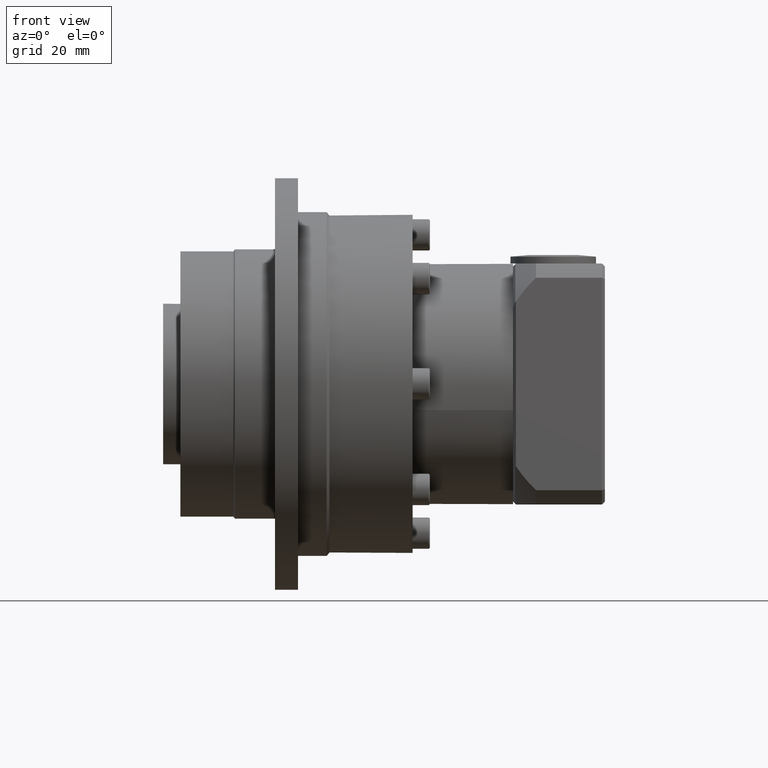
[diagram: clean part render]
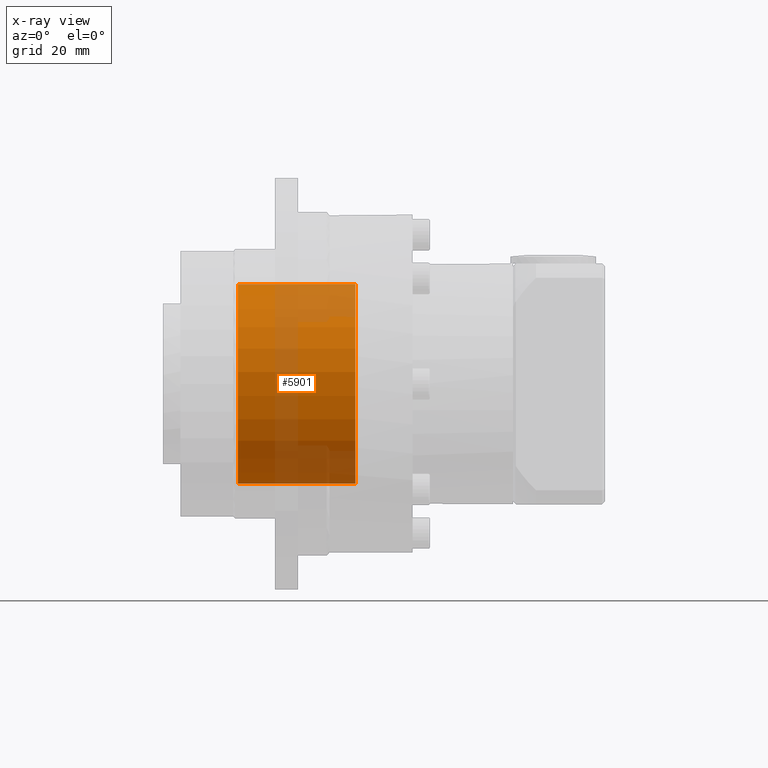
[diagram: x-ray — body ghosted, one internal face saturated and labeled with its STEP entity id]
A machine part, front view, then the same camera in x-ray: the body is ghosted and one INTERNAL B-rep face — a face not visible from any outside direction — is saturated and labeled: STEP entity #5901.
In plain terms, the highlighted cylindrical surface (bore or boss wall) has radius 17.41 mm, axis along (-1, 0, -0).
Its self-contained STEP definition (entity closure, byte-faithful):
#1182=FACE_BOUND('',#2172,.T.);
#1545=FACE_OUTER_BOUND('',#2171,.T.);
#2171=EDGE_LOOP('',(#4847));
#2172=EDGE_LOOP('',(#4848));
#2511=CIRCLE('',#6584,17.41);
#2517=CIRCLE('',#6596,17.41);
#2989=VERTEX_POINT('',#9936);
#2995=VERTEX_POINT('',#9954);
#3625=EDGE_CURVE('',#2989,#2989,#2511,.T.);
#3631=EDGE_CURVE('',#2995,#2995,#2517,.T.);
#4847=ORIENTED_EDGE('',*,*,#3631,.T.);
#4848=ORIENTED_EDGE('',*,*,#3625,.F.);
#5267=CYLINDRICAL_SURFACE('',#6597,17.41);
#5901=ADVANCED_FACE('',(#1545,#1182),#5267,.F.);
#6584=AXIS2_PLACEMENT_3D('',#9937,#8079,#8080);
#6596=AXIS2_PLACEMENT_3D('',#9955,#8103,#8104);
#6597=AXIS2_PLACEMENT_3D('',#9956,#8105,#8106);
#8079=DIRECTION('center_axis',(-1.,3.05311331771913E-16,-3.13800764382487E-15));
#8080=DIRECTION('ref_axis',(-3.13800764382485E-15,4.35335528309626E-14,
1.));
#8103=DIRECTION('center_axis',(-1.,3.05311331771913E-16,-3.13800764382487E-15));
#8104=DIRECTION('ref_axis',(-3.13800764382485E-15,4.35335528309626E-14,
1.));
#8105=DIRECTION('center_axis',(-1.,3.05311331771913E-16,-3.13800764382487E-15));
#8106=DIRECTION('ref_axis',(-3.13800764382485E-15,4.35335528309626E-14,
1.));
#9936=CARTESIAN_POINT('',(1.90483689653321,-49.1307567443884,35.4767726493692));
#9937=CARTESIAN_POINT('Origin',(1.90483689653315,-49.1307567443876,52.8867726493691));
#9954=CARTESIAN_POINT('',(-18.5951631034668,-49.1307567443884,35.4767726493691));
#9955=CARTESIAN_POINT('Origin',(-18.5951631034669,-49.1307567443876,52.8867726493691));
#9956=CARTESIAN_POINT('Origin',(1.90483689653315,-49.1307567443876,52.8867726493691));